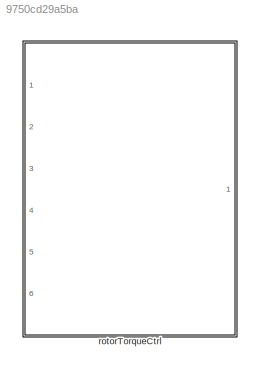
MODEL slx_9750cd29a5ba
KIND library
CONFIG AbsTol = auto
CONFIG EnableMultiTasking = off
CONFIG FixedStep = auto
CONFIG MaxStep = auto
CONFIG MinStep = auto
CONFIG RelTol = 1e-3
CONFIG SampleTimeConstraint = Unconstrained
CONFIG SolverName = VariableStepAuto
CONFIG StartTime = 0.0
CONFIG StopTime = 10.0
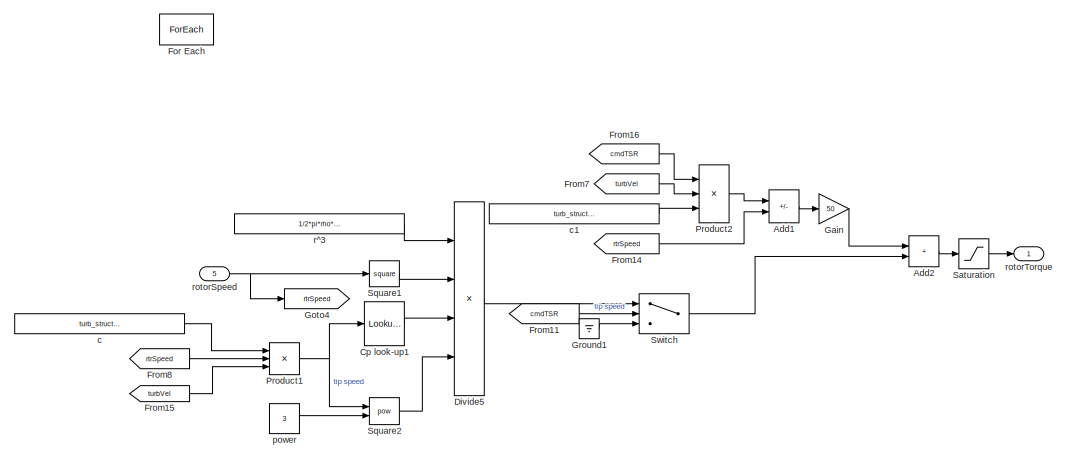
[diagram: rotorTorqueCtrl - part 1/2, right side, full height]
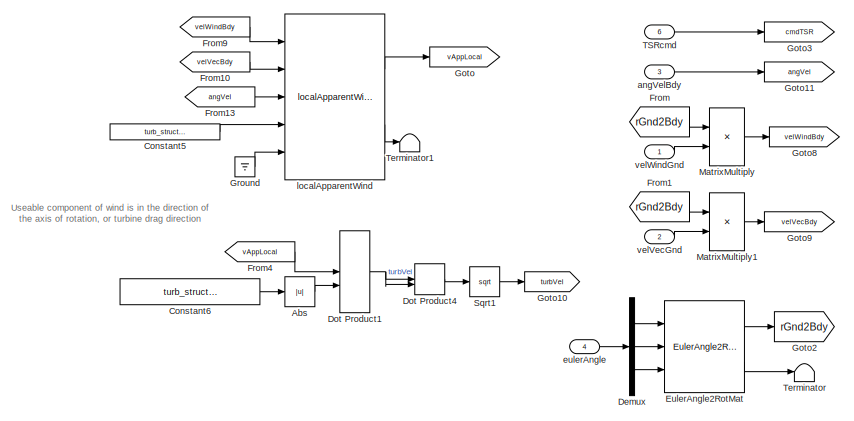
[diagram: rotorTorqueCtrl - part 2/2, left side, full height]
BLOCK [SubSystem] rotorTorqueCtrl
  Ports = [6, 1]
  RequestExecContextInheritance = off
  TreatAsAtomicUnit = on
BLOCK [Abs] rotorTorqueCtrl/Abs
  SaturateOnIntegerOverflow = off
BLOCK [Sum] rotorTorqueCtrl/Add1
  IconShape = rectangular
  Inputs = -+
  Ports = [2, 1]
BLOCK [Sum] rotorTorqueCtrl/Add2
  IconShape = rectangular
  Ports = [2, 1]
BLOCK [Constant] rotorTorqueCtrl/Constant5
  Value = turb_struct.attachPtVec
BLOCK [Constant] rotorTorqueCtrl/Constant6
  Value = turb_struct.axisUnitVec
BLOCK [Lookup_n-D] rotorTorqueCtrl/Cp look-up1
  BreakpointsForDimension1 = turb_struct.RPMref
  InputPortMap = u0
  InternalRulePriority = Speed
  NumberOfTableDimensions = 1
  Ports = [1, 1]
  RndMeth = Simplest
  Table = turb_struct.CpLookup
BLOCK [Demux] rotorTorqueCtrl/Demux
  Outputs = 3
  Ports = [1, 3]
BLOCK [Product] rotorTorqueCtrl/Divide5
  Inputs = ***/
  Ports = [4, 1]
BLOCK [DotProduct] rotorTorqueCtrl/Dot Product1
  OutDataTypeStr = Inherit: Inherit via internal rule
BLOCK [DotProduct] rotorTorqueCtrl/Dot Product4
  OutDataTypeStr = Inherit: Inherit via internal rule
BLOCK [Reference] rotorTorqueCtrl/EulerAngle2RotMat  REF=sixDoFDynamicsCoupledFossenTurbDynamics/sixDoFDynamicsCoupledFossenTurbDynamics/EulerAngle2RotMat
  Ports = [3, 2]
  SourceBlock = sixDoFDynamicsCoupledFossenTurbDynamics/sixDoFDynamicsCoupledFossenTurbDynamics/EulerAngle2RotMat
  SourceType = SubSystem
BLOCK [ForEach] rotorTorqueCtrl/For Each
  DisableCoverage = on
  IterateSubsysMaskParameter = on,off
  Ports = []
  SubsysMaskParameterIterationDimension = 2,1
  SubsysMaskParameterIterationStepSize = 1,1
BLOCK [From] rotorTorqueCtrl/From
  GotoTag = rGnd2Bdy
BLOCK [From] rotorTorqueCtrl/From1
  GotoTag = rGnd2Bdy
BLOCK [From] rotorTorqueCtrl/From10
  GotoTag = velVecBdy
BLOCK [From] rotorTorqueCtrl/From11
  GotoTag = cmdTSR
BLOCK [From] rotorTorqueCtrl/From13
  GotoTag = angVel
BLOCK [From] rotorTorqueCtrl/From14
  GotoTag = rtrSpeed
BLOCK [From] rotorTorqueCtrl/From15
  GotoTag = turbVel
BLOCK [From] rotorTorqueCtrl/From16
  GotoTag = cmdTSR
BLOCK [From] rotorTorqueCtrl/From4
  GotoTag = vAppLocal
BLOCK [From] rotorTorqueCtrl/From7
  GotoTag = turbVel
BLOCK [From] rotorTorqueCtrl/From8
  GotoTag = rtrSpeed
BLOCK [From] rotorTorqueCtrl/From9
  GotoTag = velWindBdy
BLOCK [Gain] rotorTorqueCtrl/Gain
  Gain = 50
BLOCK [Goto] rotorTorqueCtrl/Goto
  GotoTag = vAppLocal
BLOCK [Goto] rotorTorqueCtrl/Goto10
  GotoTag = turbVel
BLOCK [Goto] rotorTorqueCtrl/Goto11
  GotoTag = angVel
BLOCK [Goto] rotorTorqueCtrl/Goto2
  GotoTag = rGnd2Bdy
BLOCK [Goto] rotorTorqueCtrl/Goto3
  GotoTag = cmdTSR
BLOCK [Goto] rotorTorqueCtrl/Goto4
  GotoTag = rtrSpeed
BLOCK [Goto] rotorTorqueCtrl/Goto8
  GotoTag = velWindBdy
BLOCK [Goto] rotorTorqueCtrl/Goto9
  GotoTag = velVecBdy
BLOCK [Ground] rotorTorqueCtrl/Ground
BLOCK [Ground] rotorTorqueCtrl/Ground1
BLOCK [Product] rotorTorqueCtrl/MatrixMultiply
  Multiplication = Matrix(*)
  Ports = [2, 1]
BLOCK [Product] rotorTorqueCtrl/MatrixMultiply1
  Multiplication = Matrix(*)
  Ports = [2, 1]
BLOCK [Product] rotorTorqueCtrl/Product1
  Inputs = **/
  Ports = [3, 1]
BLOCK [Product] rotorTorqueCtrl/Product2
  Inputs = **/
  Ports = [3, 1]
BLOCK [Saturate] rotorTorqueCtrl/Saturation
  LowerLimit = -turb_struct.torqueLim
  UpperLimit = turb_struct.torqueLim
BLOCK [Sqrt] rotorTorqueCtrl/Sqrt1
BLOCK [Math] rotorTorqueCtrl/Square1
  Operator = square
  Ports = [1, 1]
BLOCK [Math] rotorTorqueCtrl/Square2
  Operator = pow
  Ports = [2, 1]
BLOCK [Switch] rotorTorqueCtrl/Switch
  Criteria = u2 > Threshold
  InputSameDT = off
  SaturateOnIntegerOverflow = off
BLOCK [Inport] rotorTorqueCtrl/TSRcmd
  Port = 6
BLOCK [Terminator] rotorTorqueCtrl/Terminator
BLOCK [Terminator] rotorTorqueCtrl/Terminator1
BLOCK [Inport] rotorTorqueCtrl/angVelBdy
  Port = 3
BLOCK [Constant] rotorTorqueCtrl/c
  Value = turb_struct.diameter/2
BLOCK [Constant] rotorTorqueCtrl/c1
  Value = turb_struct.diameter/2
BLOCK [Inport] rotorTorqueCtrl/eulerAngle
  Port = 4
BLOCK [Reference] rotorTorqueCtrl/localApparentWind  REF=localApparentWind_ul/localApparentWind
  Ports = [5, 2]
  SourceBlock = localApparentWind_ul/localApparentWind
  SourceType = SubSystem
BLOCK [Constant] rotorTorqueCtrl/power
  Value = 3
BLOCK [Constant] rotorTorqueCtrl/r^3
  Value = 1/2*pi*rho*(turb_struct.diameter/2)^5
BLOCK [Inport] rotorTorqueCtrl/rotorSpeed
  Partition = on
  PartitionDimension = 1
  PartitionOffset = 0
  PartitionWidth = 1
  Port = 5
BLOCK [Outport] rotorTorqueCtrl/rotorTorque
  ConcatenationDimension = 1
BLOCK [Inport] rotorTorqueCtrl/velVecGnd
  Port = 2
BLOCK [Inport] rotorTorqueCtrl/velWindGnd
ANNOTATION rotorTorqueCtrl: Useable component of wind is in the direction of the axis of rotation, or turbine drag direction
LINE rotorTorqueCtrl/Abs:1 -> rotorTorqueCtrl/Dot Product1:2
LINE rotorTorqueCtrl/Add1:1 -> rotorTorqueCtrl/Gain:1
LINE rotorTorqueCtrl/Add2:1 -> rotorTorqueCtrl/Saturation:1
LINE rotorTorqueCtrl/Constant5:1 -> rotorTorqueCtrl/localApparentWind:4
LINE rotorTorqueCtrl/Constant6:1 -> rotorTorqueCtrl/Abs:1
LINE rotorTorqueCtrl/Cp look-up1:1 -> rotorTorqueCtrl/Divide5:3
LINE rotorTorqueCtrl/Demux:1 -> rotorTorqueCtrl/EulerAngle2RotMat:1
LINE rotorTorqueCtrl/Demux:2 -> rotorTorqueCtrl/EulerAngle2RotMat:2
LINE rotorTorqueCtrl/Demux:3 -> rotorTorqueCtrl/EulerAngle2RotMat:3
LINE rotorTorqueCtrl/Divide5:1 -> rotorTorqueCtrl/Switch:1
NET rotorTorqueCtrl/Dot Product1:1 -> rotorTorqueCtrl/Dot Product4:1, rotorTorqueCtrl/Dot Product4:2
LINE rotorTorqueCtrl/Dot Product4:1 -> rotorTorqueCtrl/Sqrt1:1
LINE rotorTorqueCtrl/EulerAngle2RotMat:1 -> rotorTorqueCtrl/Goto2:1
LINE rotorTorqueCtrl/EulerAngle2RotMat:2 -> rotorTorqueCtrl/Terminator:1
LINE rotorTorqueCtrl/From10:1 -> rotorTorqueCtrl/localApparentWind:2
LINE rotorTorqueCtrl/From11:1 -> rotorTorqueCtrl/Switch:2
LINE rotorTorqueCtrl/From13:1 -> rotorTorqueCtrl/localApparentWind:3
LINE rotorTorqueCtrl/From14:1 -> rotorTorqueCtrl/Add1:2
LINE rotorTorqueCtrl/From15:1 -> rotorTorqueCtrl/Product1:3
LINE rotorTorqueCtrl/From16:1 -> rotorTorqueCtrl/Product2:1
LINE rotorTorqueCtrl/From1:1 -> rotorTorqueCtrl/MatrixMultiply1:1
LINE rotorTorqueCtrl/From4:1 -> rotorTorqueCtrl/Dot Product1:1
LINE rotorTorqueCtrl/From7:1 -> rotorTorqueCtrl/Product2:2
LINE rotorTorqueCtrl/From8:1 -> rotorTorqueCtrl/Product1:2
LINE rotorTorqueCtrl/From9:1 -> rotorTorqueCtrl/localApparentWind:1
LINE rotorTorqueCtrl/From:1 -> rotorTorqueCtrl/MatrixMultiply:1
LINE rotorTorqueCtrl/Gain:1 -> rotorTorqueCtrl/Add2:1
LINE rotorTorqueCtrl/Ground1:1 -> rotorTorqueCtrl/Switch:3
LINE rotorTorqueCtrl/Ground:1 -> rotorTorqueCtrl/localApparentWind:5
LINE rotorTorqueCtrl/MatrixMultiply1:1 -> rotorTorqueCtrl/Goto9:1
LINE rotorTorqueCtrl/MatrixMultiply:1 -> rotorTorqueCtrl/Goto8:1
NET rotorTorqueCtrl/Product1:1 -> rotorTorqueCtrl/Cp look-up1:1, rotorTorqueCtrl/Square2:1
LINE rotorTorqueCtrl/Product2:1 -> rotorTorqueCtrl/Add1:1
LINE rotorTorqueCtrl/Saturation:1 -> rotorTorqueCtrl/rotorTorque:1
LINE rotorTorqueCtrl/Sqrt1:1 -> rotorTorqueCtrl/Goto10:1
LINE rotorTorqueCtrl/Square1:1 -> rotorTorqueCtrl/Divide5:2
LINE rotorTorqueCtrl/Square2:1 -> rotorTorqueCtrl/Divide5:4
LINE rotorTorqueCtrl/Switch:1 -> rotorTorqueCtrl/Add2:2
LINE rotorTorqueCtrl/TSRcmd:1 -> rotorTorqueCtrl/Goto3:1
LINE rotorTorqueCtrl/angVelBdy:1 -> rotorTorqueCtrl/Goto11:1
LINE rotorTorqueCtrl/c1:1 -> rotorTorqueCtrl/Product2:3
LINE rotorTorqueCtrl/c:1 -> rotorTorqueCtrl/Product1:1
LINE rotorTorqueCtrl/eulerAngle:1 -> rotorTorqueCtrl/Demux:1
LINE rotorTorqueCtrl/localApparentWind:1 -> rotorTorqueCtrl/Goto:1
LINE rotorTorqueCtrl/localApparentWind:2 -> rotorTorqueCtrl/Terminator1:1
LINE rotorTorqueCtrl/power:1 -> rotorTorqueCtrl/Square2:2
LINE rotorTorqueCtrl/r^3:1 -> rotorTorqueCtrl/Divide5:1
NET rotorTorqueCtrl/rotorSpeed:1 -> rotorTorqueCtrl/Goto4:1, rotorTorqueCtrl/Square1:1
LINE rotorTorqueCtrl/velVecGnd:1 -> rotorTorqueCtrl/MatrixMultiply1:2
LINE rotorTorqueCtrl/velWindGnd:1 -> rotorTorqueCtrl/MatrixMultiply:2
note: NET lines group one-source signal fan-out (src -> all destinations, sorted); 1:1 wires keep LINE
